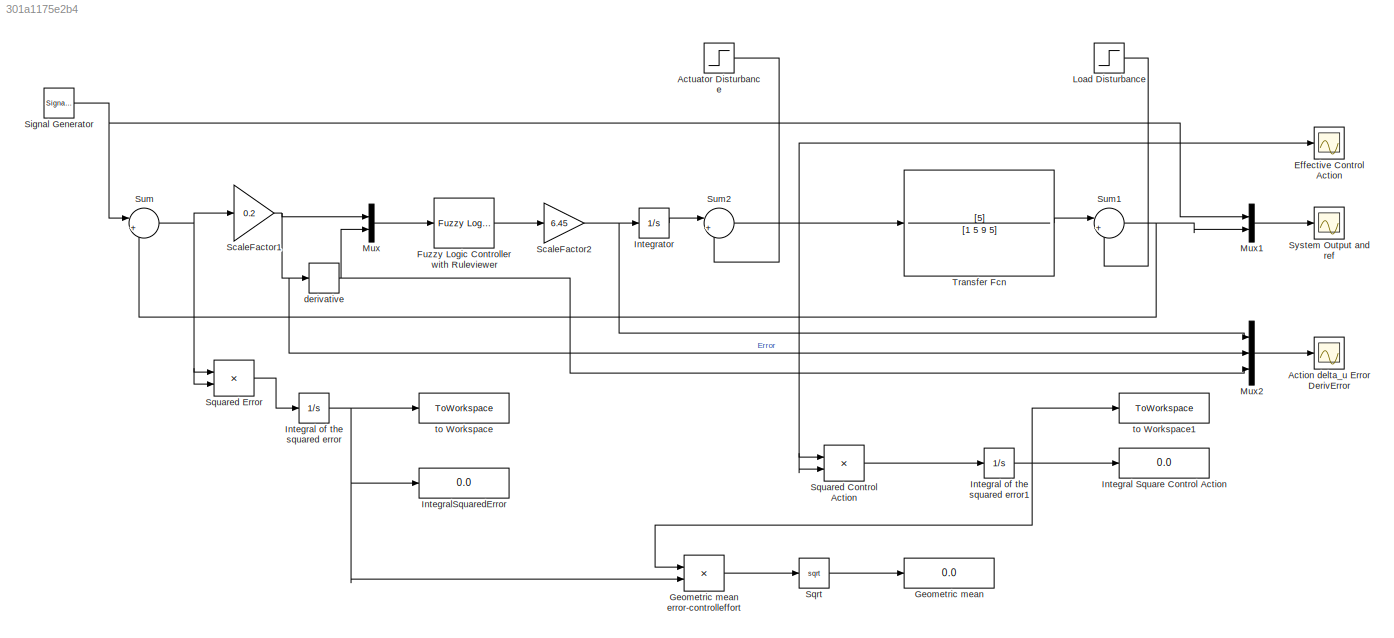
MODEL slx_301a1175e2b4
KIND model
CONFIG AbsTol = auto
CONFIG EnableMultiTasking = off
CONFIG FixedStep = auto
CONFIG MaxStep = auto
CONFIG MinStep = auto
CONFIG RelTol = 1e-3
CONFIG SampleTimeConstraint = Unconstrained
CONFIG SolverName = VariableStepAuto
CONFIG StartTime = 0.0
CONFIG StopTime = 200
BLOCK [Scope] Action delta_u Error DerivError
  Floating = off
  NumInputPorts = 1
  ScopeSpecificationString = Simulink.scopes.TimeScopeBlockCfg('CurrentConfiguration', extmgr.ConfigurationSet(extmgr.Configuration('Core','General UI',true),extmgr.Configuration('Core','Source UI',true),extmgr.Configuration('Sources','WiredSimulink',true),extmgr.Configuration('Visuals','Time Domain',true,'SerializedDisplays',{struct('MinYLimReal','-13598150006.20909','MaxYLimReal','19217322868.65784','YLabelReal','','MinYLim...<+1475ch>
BLOCK [Step] Actuator Disturbance
  SampleTime = 0
  Time = 75
BLOCK [Scope] Effective Control Action
  Floating = off
  NumInputPorts = 1
  ScopeSpecificationString = Simulink.scopes.TimeScopeBlockCfg('CurrentConfiguration', extmgr.ConfigurationSet(extmgr.Configuration('Core','General UI',true),extmgr.Configuration('Core','Source UI',true),extmgr.Configuration('Sources','WiredSimulink',true,'DataLoggingVariableName','ScopeData2'),extmgr.Configuration('Visuals','Time Domain',true,'SerializedDisplays',{struct('MinYLimReal','-2.23263','MaxYLimReal','2.23362','YLab...<+1392ch>
BLOCK [Reference] Fuzzy Logic Controller with Ruleviewer  REF=fuzblock/Fuzzy Logic   (lib defined in mdl_858b3b3e7478)
Controller 
with Ruleviewer
  SourceBlock = fuzblock/Fuzzy Logic \nController \nwith Ruleviewer
  SourceType = Fuzzy Inference System
BLOCK [Display] Geometric mean
  Decimation = 1
BLOCK [Product] Geometric mean error-controlleffort
BLOCK [Display] Integral Square Control Action
  Decimation = 1
BLOCK [Integrator] Integral of the squared error
BLOCK [Integrator] Integral of the squared error1
BLOCK [Display] IntegralSquaredError
  Decimation = 1
BLOCK [Integrator] Integrator
BLOCK [Step] Load Disturbance
  SampleTime = 0
  Time = 150
BLOCK [Mux] Mux
  DisplayOption = bar
  Inputs = 2
BLOCK [Mux] Mux1
  DisplayOption = bar
  Inputs = 2
BLOCK [Mux] Mux2
  DisplayOption = bar
  Inputs = 3
BLOCK [Gain] ScaleFactor1
  Gain = 0.2
BLOCK [Gain] ScaleFactor2
  Gain = 6.45
BLOCK [SignalGenerator] Signal Generator
  Frequency = 0.06
  Units = rad/sec
  WaveForm = sawtooth
BLOCK [Sqrt] Sqrt
BLOCK [Product] Squared Control Action
BLOCK [Product] Squared Error
BLOCK [Sum] Sum
  Inputs = |+-
BLOCK [Sum] Sum1
  Inputs = |+-
BLOCK [Sum] Sum2
  Inputs = |+-
BLOCK [Scope] System Output and ref
  Floating = off
  NumInputPorts = 1
  ScopeSpecificationString = Simulink.scopes.TimeScopeBlockCfg('CurrentConfiguration', extmgr.ConfigurationSet(extmgr.Configuration('Core','General UI',true),extmgr.Configuration('Core','Source UI',true),extmgr.Configuration('Sources','WiredSimulink',true,'DataLoggingVariableName','ScopeData1'),extmgr.Configuration('Visuals','Time Domain',true,'SerializedDisplays',{struct('MinYLimReal','-1.272','MaxYLimReal','1.46106','YLabel...<+1408ch>
BLOCK [TransferFcn] Transfer Fcn
  Denominator = [1 5 9 5]
  Numerator = [5]
BLOCK [Derivative] derivative
BLOCK [ToWorkspace] to Workspace
  FixptAsFi = on
  MaxDataPoints = inf
  SampleTime = -1
  SaveFormat = Timeseries
  VariableName = performance1
BLOCK [ToWorkspace] to Workspace1
  FixptAsFi = on
  MaxDataPoints = inf
  SampleTime = -1
  SaveFormat = Timeseries
  VariableName = performance2
LINE Actuator Disturbance:1 -> Sum2:2
LINE Fuzzy Logic Controller with Ruleviewer:1 -> ScaleFactor2:1
LINE Geometric mean error-controlleffort:1 -> Sqrt:1
NET Integral of the squared error1:1 -> Geometric mean error-controlleffort:1, Integral Square Control Action:1, to Workspace1:1
NET Integral of the squared error:1 -> Geometric mean error-controlleffort:2, IntegralSquaredError:1, to Workspace:1
LINE Integrator:1 -> Sum2:1
LINE Load Disturbance:1 -> Sum1:2
LINE Mux1:1 -> System Output and ref:1
LINE Mux2:1 -> Action delta_u Error DerivError:1
LINE Mux:1 -> Fuzzy Logic Controller with Ruleviewer:1
NET ScaleFactor1:1 -> Mux2:2, Mux:1, derivative:1
NET ScaleFactor2:1 -> Integrator:1, Mux2:1
NET Signal Generator:1 -> Mux1:1, Sum:1
LINE Sqrt:1 -> Geometric mean:1
LINE Squared Control Action:1 -> Integral of the squared error1:1
LINE Squared Error:1 -> Integral of the squared error:1
NET Sum1:1 -> Mux1:2, Sum:2
NET Sum2:1 -> Effective Control Action:1, Squared Control Action:1, Squared Control Action:2, Transfer Fcn:1
NET Sum:1 -> ScaleFactor1:1, Squared Error:1, Squared Error:2
LINE Transfer Fcn:1 -> Sum1:1
NET derivative:1 -> Mux2:3, Mux:2
note: NET lines group one-source signal fan-out (src -> all destinations, sorted); 1:1 wires keep LINE
